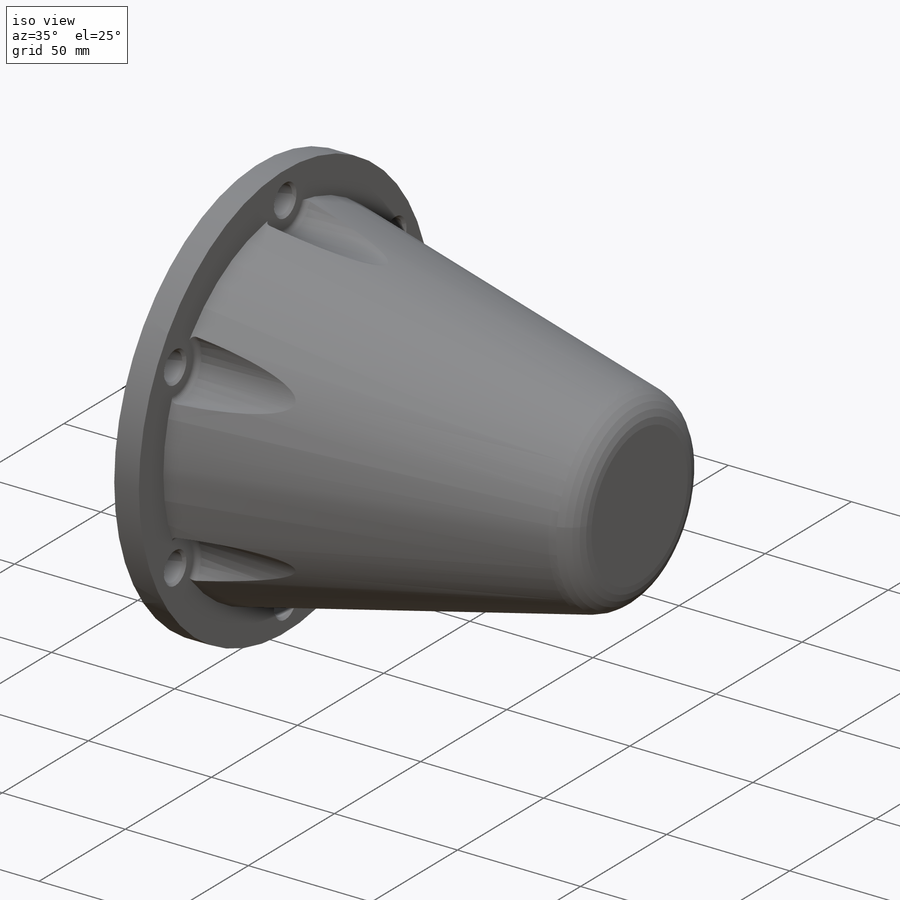
[diagram: iso view]
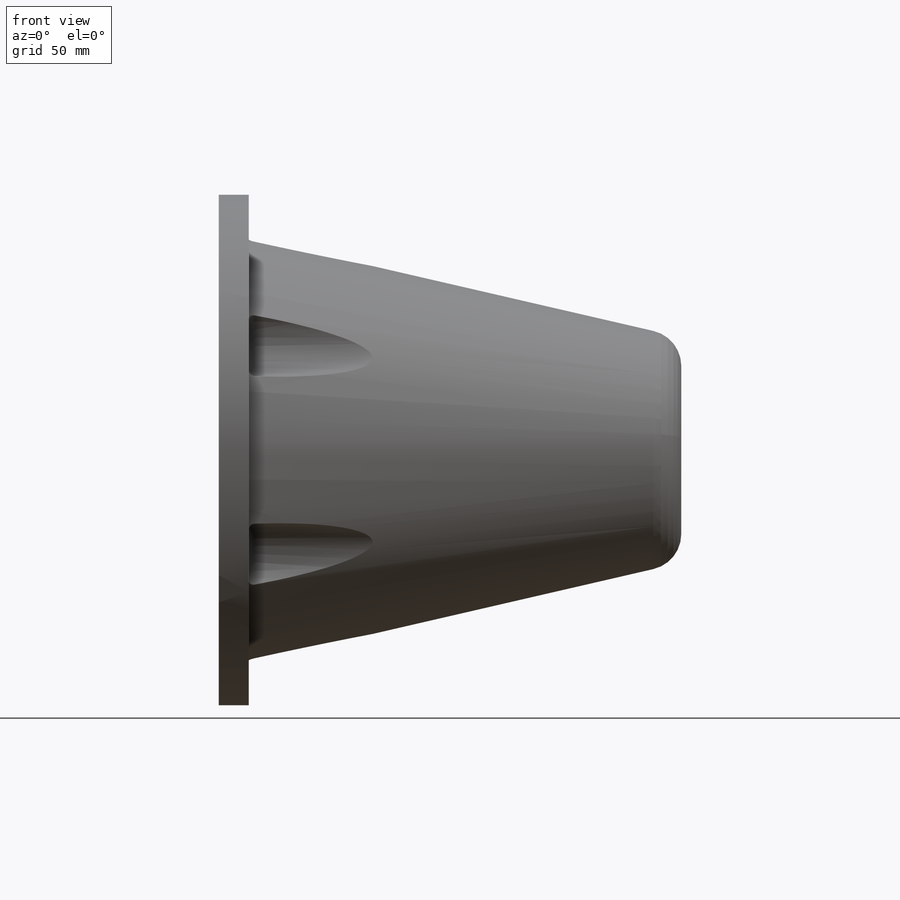
[diagram: front view]
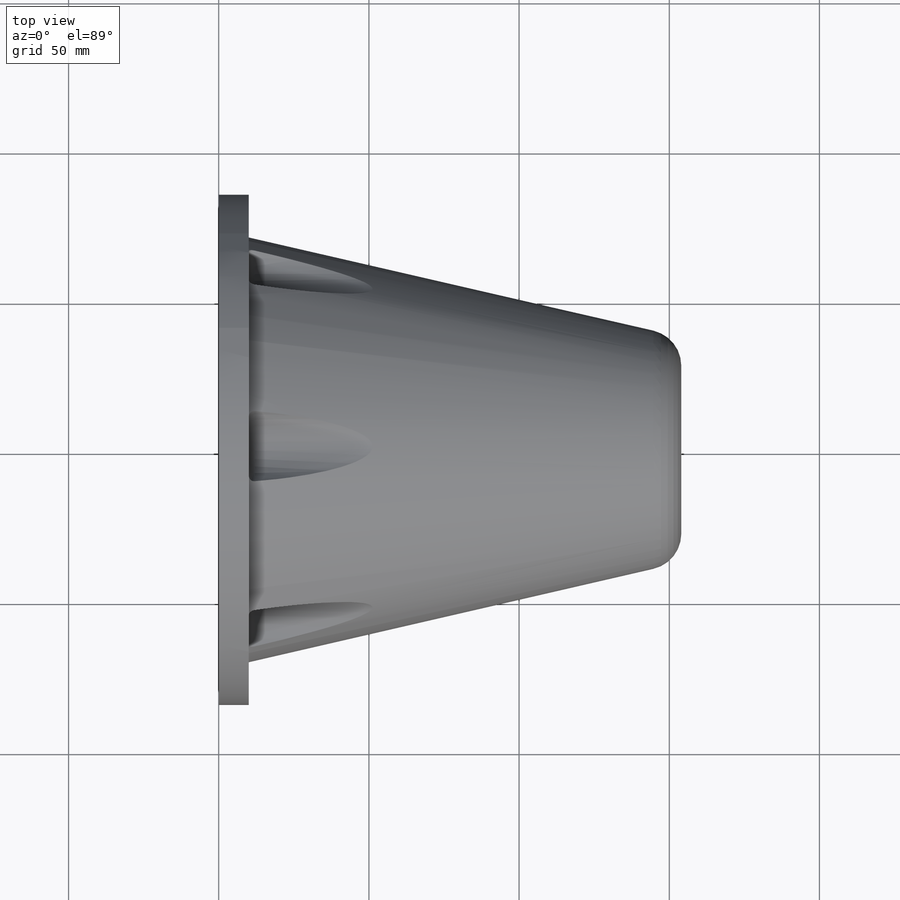
[diagram: top view]
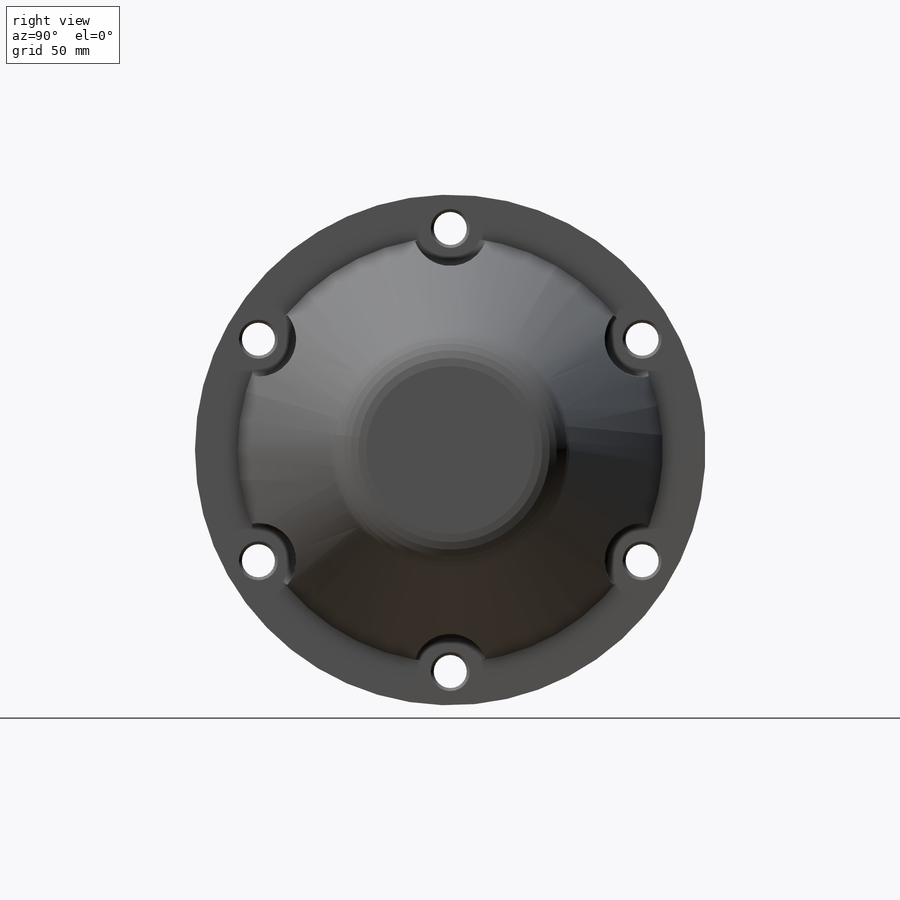
[diagram: right view]
SOLIDWORKS PART (.sldprt)
format: sldprt  version: not decoded by parser v0  size: 304,640 bytes
history: native  units: mm
features: sketch x4, plane x3, fillet x3, material x1, revolve x1, cut_extrude x1, hole x1, pattern_circular x1, chamfer x1 (+8 scaffold rows collapsed)
feature tree (24):
  scaffold x8  (default folders/planes/origin — collapsed)
  material  "16NiCr4"
  plane  "Płaszczyzna przednia"
  plane  "Płaszczyzna górna"
  plane  "Płaszczyzna prawa"
  sketch  "Szkic1"  dims[c1.D1=60.0mm c1.D2=170.0mm c1.D3=121.0mm c1.D4=154.0mm c1.D5=10.0mm c1.D6=10.0mm c1.D7=10.0mm c1.D8=~43.959811mm c2.D1=134.0mm c3.D1=13.0deg]
  revolve  "Obrót1"  Angle=360deg
  sketch  "Szkic2"  dims[D1=147.5mm D2=25.0mm]
  cut_extrude  "Wytnij-wyciągnięcie1"  [1 undecoded]
  hole  "Otwór pod śrubę M101"  [1 undecoded]
  sketch  "Szkic4"
  sketch  "Szkic3"  dims[hole-wizard template sketch: 46 standard entries collapsed; hole parameters kept: c15.Średnica otworu na wylot=11.0mm c15.Głębokość otworu na wylot=10.0mm c15.Średnica zewnętrznego pogłębienia stożkowego=13.0mm c15.D4=~3.666174mm c15.Kąt zewnętrznego pogłębienia stożkowego=90.0deg c15.Średnica wewnętrznego pogłębienia stożkowego=13.0mm c15.D6=~9.919017mm c15.Kąt wewnętrznego pogłębienia stożkowego=90.0deg]
  pattern_circular  "Szyk kołowy1"  Count=6 Angle=360deg
  fillet  "Zaokrąglenie1"  Radius=12mm
  fillet  "Zaokrąglenie2"  Radius=2mm
  fillet  "Zaokrąglenie3"  Radius=2mm
  chamfer  "Sfazowanie1"  Distance=1mm Angle=45deg
decode coverage: 9 of 12 modeling features carry decoded parameters
note: ~ marks probable driven/reference dimensions
note: 2 parameter values undecoded
note: suppression state not decoded; provenance and decode notes live in map.json
